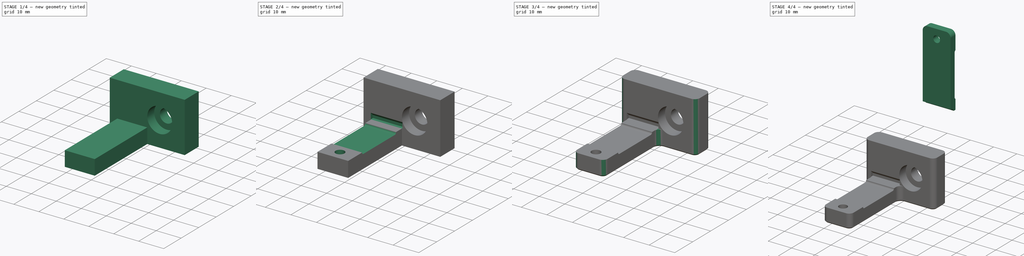
[diagram: build sequence overview — one tinted view per stage of 4, left to right]
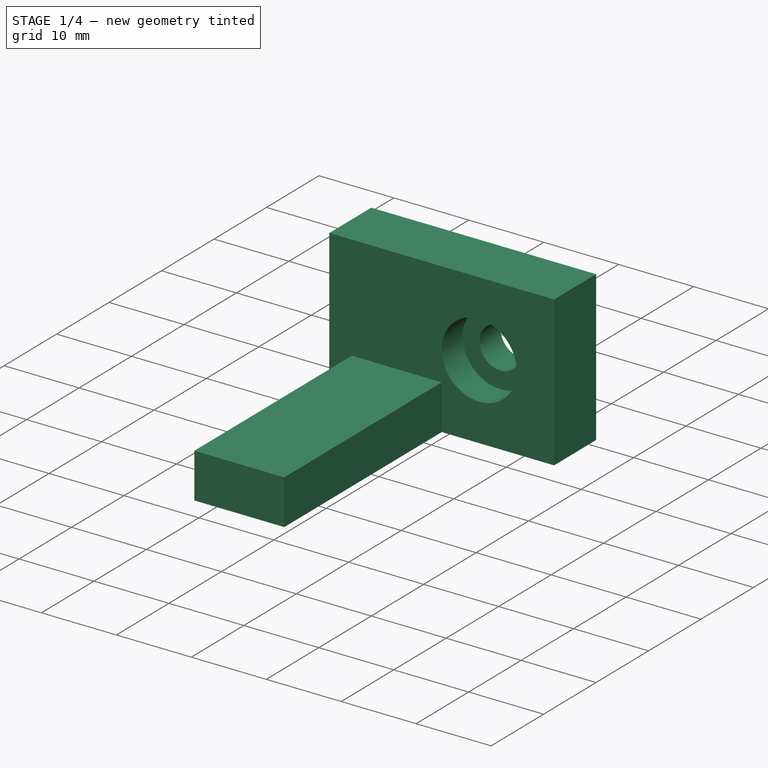
[diagram: stage 1 of 4 — iso view after this stage's code; geometry added in this stage tinted green]
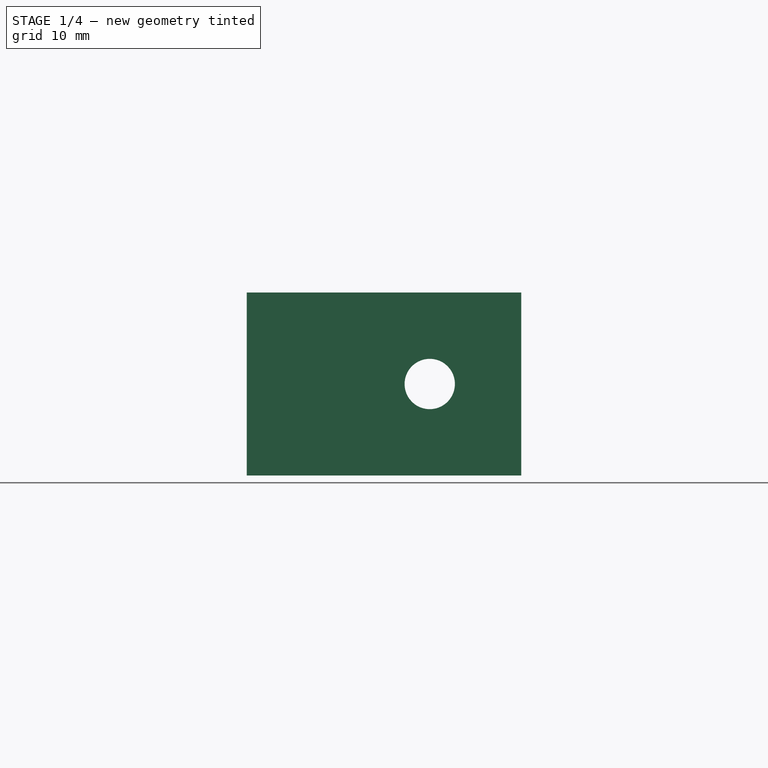
[diagram: stage 1 of 4 — front view after this stage's code; geometry added in this stage tinted green]
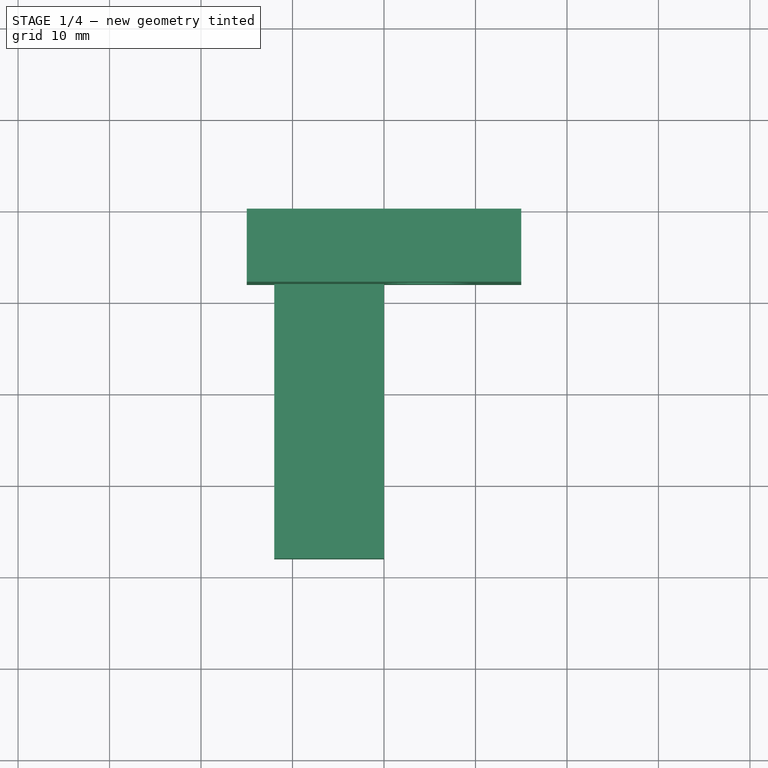
[diagram: stage 1 of 4 — top view after this stage's code; geometry added in this stage tinted green]
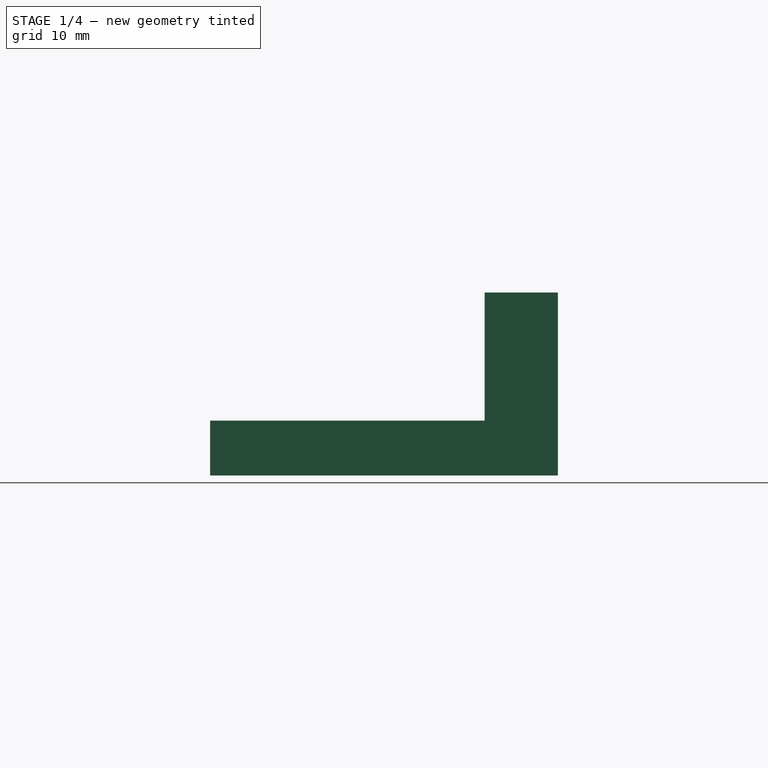
[diagram: stage 1 of 4 — right view after this stage's code; geometry added in this stage tinted green]
FCSTD DOCUMENT  (FreeCAD 1.0R38806 (Git))
Label: wire-mount-frame
License: All rights reserved
LicenseURL: http://en.wikipedia.org/wiki/All_rights_reserved
objects: Sketcher::SketchObject×8, PartDesign::Pad×4, PartDesign::Groove×2, PartDesign::Pocket×2, PartDesign::Fillet×2, PartDesign::Body×2, App::Part×1, PartDesign::Chamfer×1
note: 51 computed .brp shape members not serialized (recipe doc carries the construction recipe); baked Part::Feature solids carry a one-line shape summary decoded from their .brp

FEATURE [Sketcher::SketchObject] Sketch
  ArcFitTolerance = 1e-06
  AttachmentSupport = -> [XY_Plane001]
  FullyConstrained = true
  MakeInternals = false
  MapMode = 5
  sketch-geometry (4):
    g0: LineSegment StartX=-15 StartY=0 StartZ=0 EndX=-15 EndY=-8 EndZ=0
    g1: LineSegment StartX=15 StartY=-8 StartZ=0 EndX=15 EndY=0 EndZ=0
    g2: LineSegment StartX=15 StartY=0 StartZ=0 EndX=-15 EndY=0 EndZ=0
    g3: LineSegment StartX=15 StartY=-8 StartZ=0 EndX=-15 EndY=-8 EndZ=0
  constraints (11):
    c: Coincident(g1,g2)
    c: Coincident(g2,g0)
    c: Vertical(g0)
    c: Vertical(g1)
    c: Horizontal(g2)
    c: PointOnObject(g0,g-1)
    c: Coincident(g3,g0)
    c: Symmetric(g0,g1,g-2)
    c: DistanceX(g2,g2) = 30
    c: DistanceY(g1,g1) = 8
    c: Coincident(g3,g1)
FEATURE [PartDesign::Pad] Pad
  Direction = (0,0,1)
  Length = 20
  Length2 = 10
  Profile = -> Sketch
  ReferenceAxis = -> Sketch [N_Axis]
  Suppressed = false
  Type = 0
FEATURE [Sketcher::SketchObject] Sketch001
  ArcFitTolerance = 1e-06
  AttachmentSupport = -> [XY_Plane001]
  FullyConstrained = true
  MakeInternals = false
  MapMode = 5
  sketch-geometry (4):
    g0: LineSegment StartX=-12 StartY=-8 StartZ=0 EndX=-12 EndY=-38 EndZ=0
    g1: LineSegment StartX=-12 StartY=-38 StartZ=0 EndX=0 EndY=-38 EndZ=0
    g2: LineSegment StartX=0 StartY=-38 StartZ=0 EndX=0 EndY=-8 EndZ=0
    g3: LineSegment StartX=0 StartY=-8 StartZ=0 EndX=-12 EndY=-8 EndZ=0
  constraints (12):
    c: Coincident(g0,g1)
    c: Coincident(g1,g2)
    c: Coincident(g2,g3)
    c: Coincident(g3,g0)
    c: Vertical(g0)
    c: Vertical(g2)
    c: Horizontal(g1)
    c: Horizontal(g3)
    c: DistanceY(g2,g2) = 30
    c: DistanceY(g2) = -8
    c: DistanceX(g3,g3) = 12
    c: DistanceX(g0) = -12
FEATURE [PartDesign::Pad] Pad001
  BaseFeature = -> Pad
  Direction = (0,0,1)
  Length = 6
  Length2 = 10
  Profile = -> Sketch001
  ReferenceAxis = -> Sketch001 [N_Axis]
  Refine = true
  Suppressed = false
  Type = 0
FEATURE [Sketcher::SketchObject] Sketch002
  ArcFitTolerance = 1e-06
  AttachmentOffset = pos=(5,0,10) rot=(0,0,1;0rad)
  AttachmentSupport = -> [XY_Plane001]
  FullyConstrained = true
  MakeInternals = false
  MapMode = 5
  Placement = pos=(5,0,10) rot=(0,0,1;0rad)
  sketch-geometry (6):
    g0: LineSegment StartX=0 StartY=0 StartZ=0 EndX=2.75 EndY=0 EndZ=0
    g1: LineSegment StartX=2.75 StartY=0 StartZ=0 EndX=2.75 EndY=-4 EndZ=0
    g2: LineSegment StartX=2.75 StartY=-4 StartZ=0 EndX=5 EndY=-4 EndZ=0
    g3: LineSegment StartX=5 StartY=-4 StartZ=0 EndX=5 EndY=-8 EndZ=0
    g4: LineSegment StartX=5 StartY=-8 StartZ=0 EndX=0 EndY=-8 EndZ=0
    g5: LineSegment StartX=0 StartY=-8 StartZ=0 EndX=0 EndY=0 EndZ=0
  constraints (17):
    c: Coincident(g-1,g0)
    c: PointOnObject(g0,g-1)
    c: Coincident(g0,g1)
    c: Vertical(g1)
    c: Coincident(g1,g2)
    c: Horizontal(g2)
    c: Coincident(g2,g3)
    c: Vertical(g3)
    c: Coincident(g3,g4)
    c: PointOnObject(g4,g-2)
    c: Horizontal(g4)
    c: Coincident(g4,g5)
    c: Coincident(g5,g0)
    c: DistanceX(g0,g0) = 2.75
    c: DistanceX(g4,g4) = 5
    c: DistanceY(g1,g1) = 4
    c: DistanceY(g3,g3) = 4
FEATURE [PartDesign::Groove] Groove
  Angle = 360
  Angle2 = 60
  Axis = (0,1,0)
  Base = (5,0,10)
  BaseFeature = -> Pad001
  Profile = -> Sketch002
  ReferenceAxis = -> Sketch002 [V_Axis]
  Suppressed = false
  Type = 0
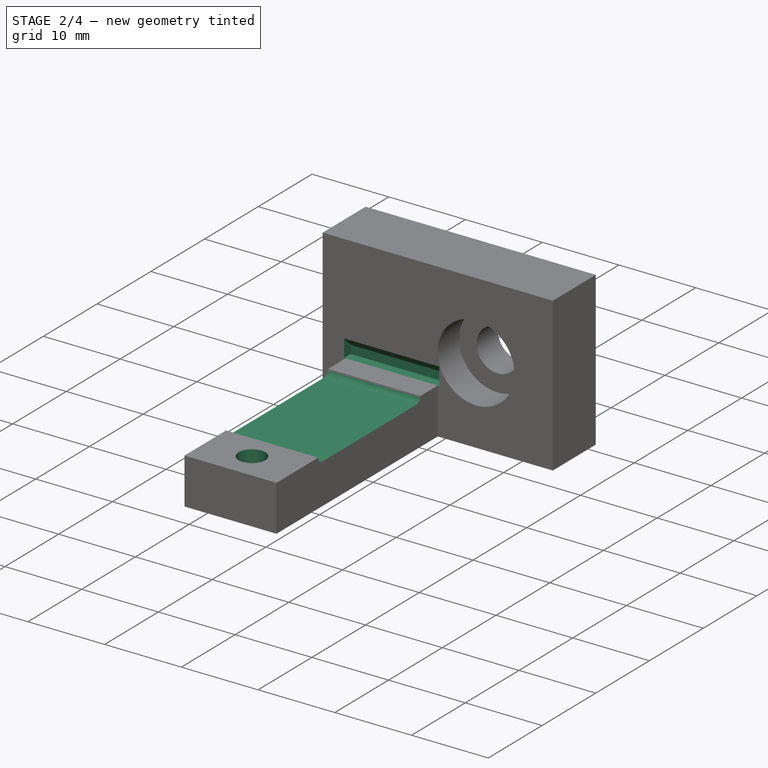
[diagram: stage 2 of 4 — iso view after this stage's code; geometry added in this stage tinted green]
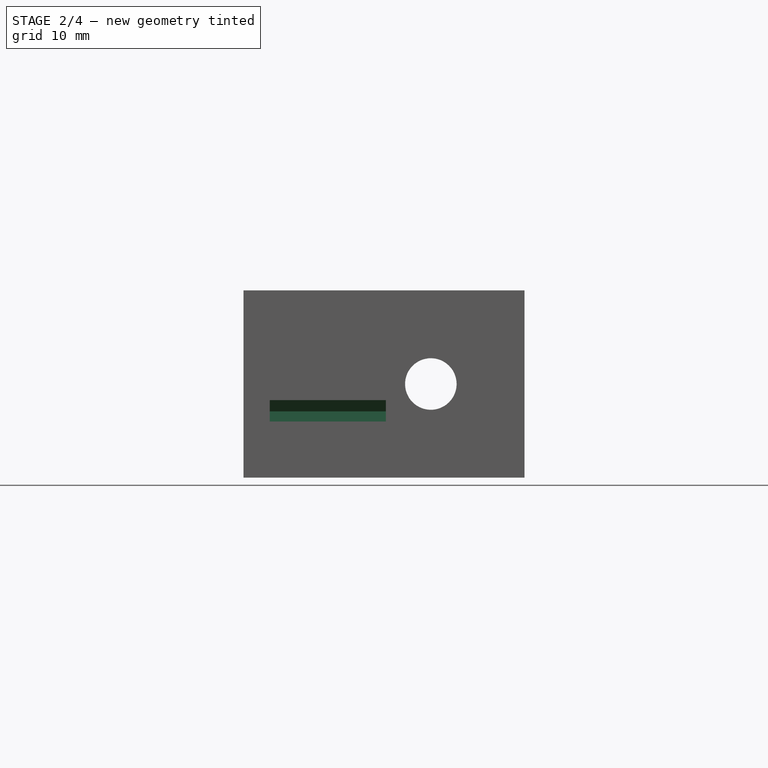
[diagram: stage 2 of 4 — front view after this stage's code; geometry added in this stage tinted green]
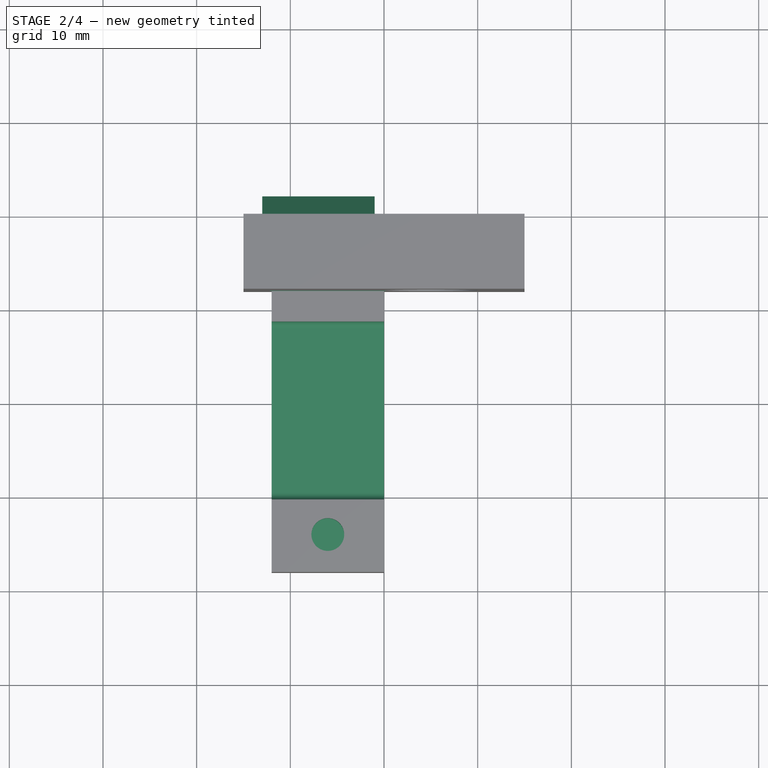
[diagram: stage 2 of 4 — top view after this stage's code; geometry added in this stage tinted green]
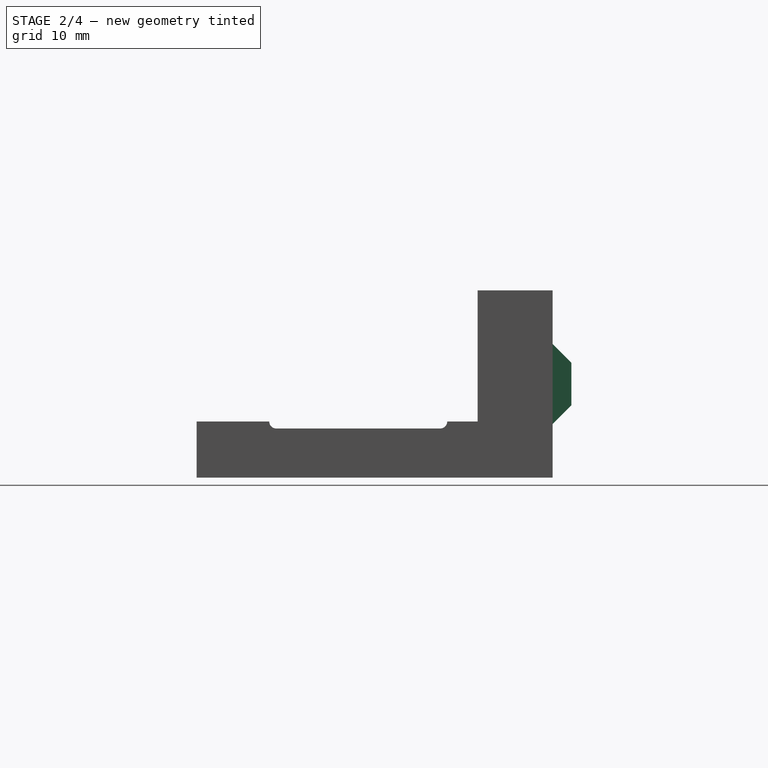
[diagram: stage 2 of 4 — right view after this stage's code; geometry added in this stage tinted green]
FEATURE [Sketcher::SketchObject] Sketch003
  ArcFitTolerance = 1e-06
  AttachmentSupport = -> [YZ_Plane001]
  FullyConstrained = true
  MakeInternals = false
  MapMode = 5
  Placement = pos=(0,0,0) rot=(0.57735,0.57735,0.57735;2.0944rad)
  sketch-geometry (7):
    g0: GeomPoint X=0 Y=10 Z=0
    g1: LineSegment StartX=0 StartY=14.2757 StartZ=0 EndX=0 EndY=5.72426 EndZ=0
    g2: LineSegment StartX=0 StartY=5.72426 StartZ=0 EndX=2 EndY=7.72426 EndZ=0
    g3: LineSegment StartX=2 StartY=7.72426 StartZ=0 EndX=2 EndY=12.2757 EndZ=0
    g4: LineSegment StartX=2 StartY=12.2757 StartZ=0 EndX=0 EndY=14.2757 EndZ=0
    g5: GeomPoint X=2 Y=10 Z=0
    g6: LineSegment [constr] StartX=2 StartY=12.7 StartZ=0 EndX=2 EndY=7.3 EndZ=0
  constraints (17):
    c: PointOnObject(g0,g-2)
    c: DistanceY(g0) = 10
    c: PointOnObject(g1,g-2)
    c: Coincident(g1,g2)
    c: Coincident(g2,g3)
    c: Vertical(g3)
    c: Coincident(g3,g4)
    c: Coincident(g4,g1)
    c: Symmetric(g1,g1,g0)
    c: Symmetric(g3,g3,g5)
    c: Horizontal(g5,g0)
    c: Perpendicular(g2,g4)
    c: DistanceX(g4,g4) = 2
    c: Vertical(g6)
    c: Symmetric(g6,g6,g5)
    c: DistanceY(g6,g6) = 5.4
    c: Distance(g6,g4) = 0.3
FEATURE [PartDesign::Pad] Pad002
  BaseFeature = -> Groove
  Direction = (1,0,0)
  Length = 13
  Length2 = -1
  Profile = -> Sketch003
  ReferenceAxis = -> Sketch003 [N_Axis]
  Reversed = true
  Suppressed = false
  Type = 4
FEATURE [Sketcher::SketchObject] Sketch004
  ArcFitTolerance = 1e-06
  AttachmentOffset = pos=(0,0,-6) rot=(0,0,1;0rad)
  AttachmentSupport = -> [YZ_Plane001]
  FullyConstrained = true
  MakeInternals = false
  MapMode = 5
  Placement = pos=(-6,0,0) rot=(0.57735,0.57735,0.57735;2.0944rad)
  sketch-geometry (9):
    g0: LineSegment StartX=-8 StartY=6 StartZ=0 EndX=-6.8 EndY=6 EndZ=0
    g1: LineSegment StartX=-6.8 StartY=6 StartZ=0 EndX=-6.8 EndY=7.08284 EndZ=0
    g2: LineSegment StartX=-6.8 StartY=7.08284 StartZ=0 EndX=-8 EndY=8.28284 EndZ=0
    g3: LineSegment StartX=-8 StartY=8.28284 StartZ=0 EndX=-8 EndY=6 EndZ=0
    g4: ArcOfCircle CenterX=-29.5 CenterY=6 CenterZ=0 NormalX=0 NormalY=0 NormalZ=1 AngleXU=0 Radius=0.75 StartAngle=1.5708 EndAngle=4.71239
    g5: ArcOfCircle CenterX=-12 CenterY=6 CenterZ=0 NormalX=0 NormalY=0 NormalZ=1 AngleXU=0 Radius=0.75 StartAngle=4.71239 EndAngle=7.85398
    g6: LineSegment StartX=-29.5 StartY=6.75 StartZ=0 EndX=-12 EndY=6.75 EndZ=0
    g7: LineSegment StartX=-29.5 StartY=5.25 StartZ=0 EndX=-12 EndY=5.25 EndZ=0
    g8: LineSegment [constr] StartX=-7 StartY=7 StartZ=0 EndX=-8 EndY=8 EndZ=0
  constraints (26):
    c: Coincident(g0,g1)
    c: Vertical(g1)
    c: Coincident(g1,g2)
    c: Coincident(g2,g3)
    c: Coincident(g3,g0)
    c: Vertical(g3)
    c: Horizontal(g0)
    c: Angle(g2) = 2.35619
    c: DistanceX(g0,g0) = 1.2
    c: DistanceX(g0) = -8
    c: DistanceY(g0) = 6
    c: Tangent(g4,g6) = 1.5708
    c: Tangent(g4,g7) = -1.5708
    c: Tangent(g5,g6) = 1.5708
    c: Tangent(g5,g7) = -1.5708
    c: Equal(g4,g5)
    c: Horizontal(g6)
    c: DistanceY(g4) = 6
    c: DistanceX(g4,g5) = 17.5
    c: Radius(g4) = 0.75
    c: DistanceX(g5) = -12
    c: PointOnObject(g8,g3)
    c: Parallel(g8,g2)
    c: DistanceY(g0,g8) = 1
    c: DistanceX(g0,g8) = 1
    c: Distance(g8,g2) = 0.2
FEATURE [PartDesign::Pocket] Pocket
  BaseFeature = -> Pad002
  Direction = (-1,0,0)
  Length = 12.4
  Length2 = 5
  Midplane = true
  Profile = -> Sketch004
  ReferenceAxis = -> Sketch004 [N_Axis]
  Suppressed = false
  Type = 0
FEATURE [Sketcher::SketchObject] Sketch005
  ArcFitTolerance = 1e-06
  AttachmentOffset = pos=(-34,0,-6) rot=(0,0,1;0rad)
  AttachmentSupport = -> [YZ_Plane001]
  FullyConstrained = true
  MakeInternals = false
  MapMode = 5
  Placement = pos=(-6,-34,0) rot=(0.57735,0.57735,0.57735;2.0944rad)
  sketch-geometry (8):
    g0: LineSegment StartX=0 StartY=4 StartZ=0 EndX=0 EndY=0 EndZ=0
    g1: LineSegment StartX=0 StartY=0 StartZ=0 EndX=3 EndY=0 EndZ=0
    g2: LineSegment StartX=3 StartY=0 StartZ=0 EndX=3 EndY=4 EndZ=0
    g3: LineSegment StartX=3 StartY=4 StartZ=0 EndX=0 EndY=4 EndZ=0
    g4: LineSegment StartX=0 StartY=6 StartZ=0 EndX=0 EndY=4.3 EndZ=0
    g5: LineSegment StartX=0 StartY=4.3 StartZ=0 EndX=1.75 EndY=4.3 EndZ=0
    g6: LineSegment StartX=1.75 StartY=4.3 StartZ=0 EndX=1.75 EndY=6 EndZ=0
    g7: LineSegment StartX=1.75 StartY=6 StartZ=0 EndX=0 EndY=6 EndZ=0
  constraints (24):
    c: Coincident(g0,g1)
    c: Coincident(g1,g2)
    c: Coincident(g2,g3)
    c: Coincident(g3,g0)
    c: Vertical(g0)
    c: Vertical(g2)
    c: Horizontal(g1)
    c: Horizontal(g3)
    c: PointOnObject(g0,g-2)
    c: PointOnObject(g1,g-1)
    c: Coincident(g4,g5)
    c: Coincident(g5,g6)
    c: Coincident(g6,g7)
    c: Coincident(g7,g4)
    c: Vertical(g4)
    c: Vertical(g6)
    c: Horizontal(g5)
    c: Horizontal(g7)
    c: PointOnObject(g4,g-2)
    c: DistanceY(g2,g5) = 0.3
    c: DistanceX(g1,g1) = 3
    c: DistanceX(g5,g5) = 1.75
    c: DistanceY(g6) = 6
    c: DistanceY(g2,g2) = 4
FEATURE [PartDesign::Groove] Groove001
  Angle = 360
  Angle2 = 60
  Axis = (0,0,1)
  Base = (-6,-34,0)
  BaseFeature = -> Pocket
  Profile = -> Sketch005
  ReferenceAxis = -> Sketch005 [V_Axis]
  Suppressed = false
  Type = 0
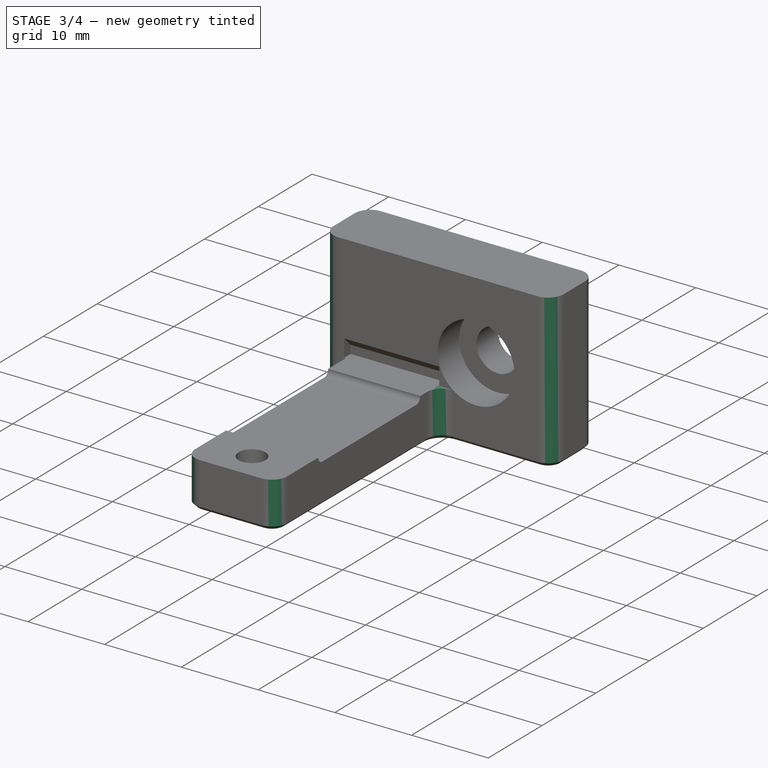
[diagram: stage 3 of 4 — iso view after this stage's code; geometry added in this stage tinted green]
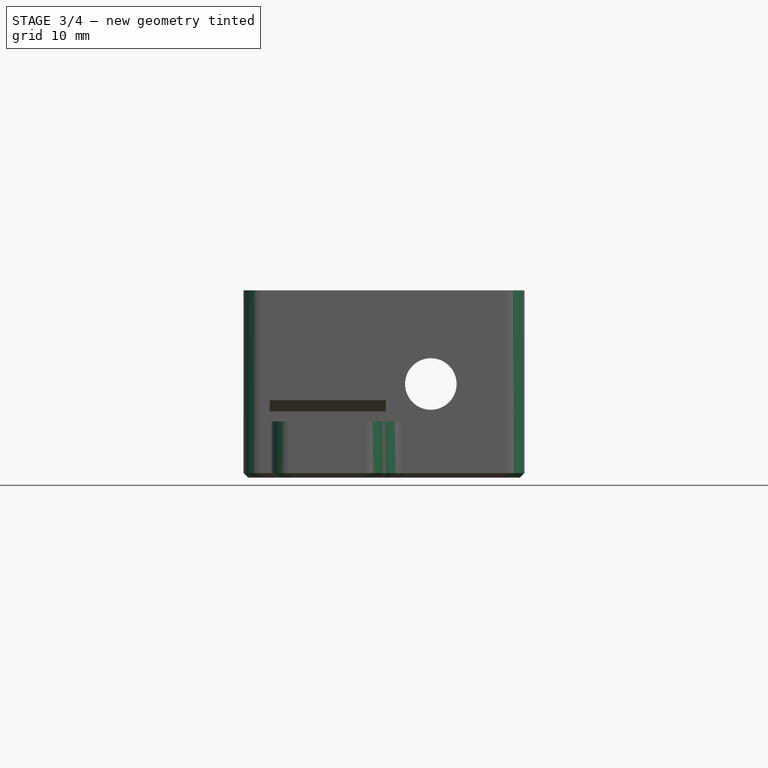
[diagram: stage 3 of 4 — front view after this stage's code; geometry added in this stage tinted green]
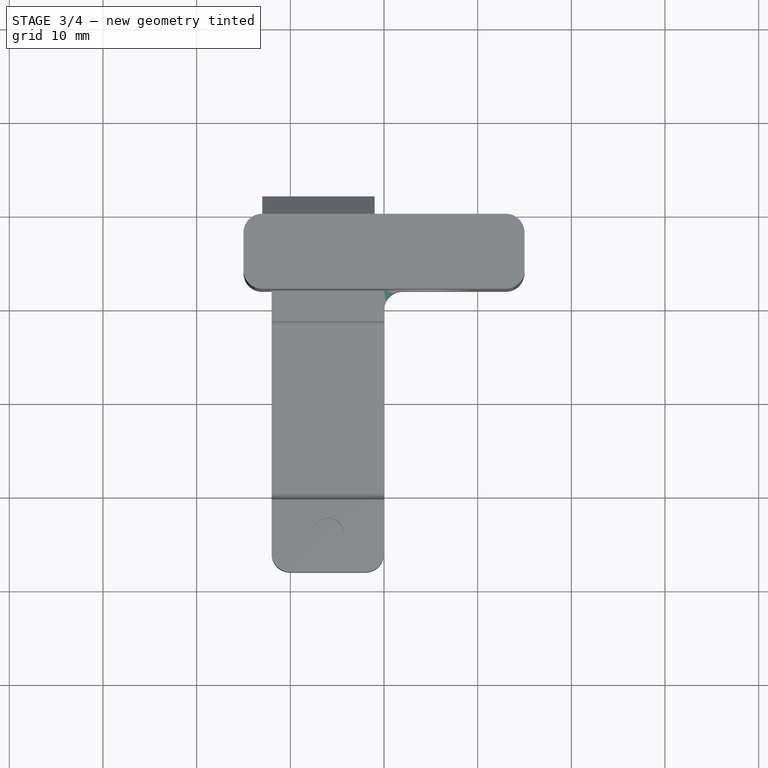
[diagram: stage 3 of 4 — top view after this stage's code; geometry added in this stage tinted green]
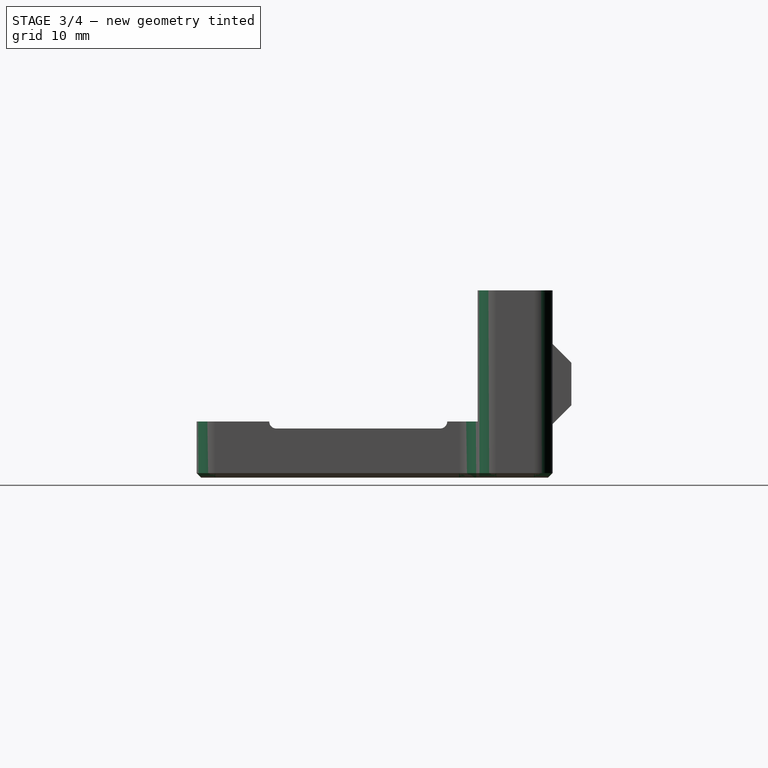
[diagram: stage 3 of 4 — right view after this stage's code; geometry added in this stage tinted green]
FEATURE [PartDesign::Body] Body160  label="wire-mount-clamp"
  AllowCompound = false
  Group = -> [Sketch351,Pad086,Fillet016,Sketch380,Pocket260]
  Origin = -> Origin305
  Placement = pos=(0,0,0) rot=(0,0,1;3.14159rad)
  Tip = -> Pocket260
FEATURE [App::Part] Part
  Group = -> [Body160]
  Origin = -> Origin306
  Placement = pos=(-6,20,24) rot=(1,0,0;1.5708rad)
FEATURE [PartDesign::Fillet] Fillet
  Base = -> Groove001 [Edge19,Edge14,Edge46,Edge36,Edge6,Edge1,Edge2]
  BaseFeature = -> Groove001
  Radius = 1.99
  SupportTransform = false
  Suppressed = false
  UseAllEdges = false
FEATURE [PartDesign::Chamfer] Chamfer
  Angle = 45
  Base = -> Fillet [Face2]
  BaseFeature = -> Fillet
  ChamferType = 0
  FlipDirection = false
  Size = 0.49
  Size2 = 1
  SupportTransform = false
  Suppressed = false
  UseAllEdges = false
FEATURE [PartDesign::Body] Body001  label="wire-mount"
  AllowCompound = false
  Group = -> [Sketch,Pad,Sketch001,Pad001,Sketch002,Groove,Sketch003,Pad002,Sketch004,Pocket,Sketch005,Groove001,Fillet,Chamfer]
  Origin = -> Origin001
  Tip = -> Chamfer
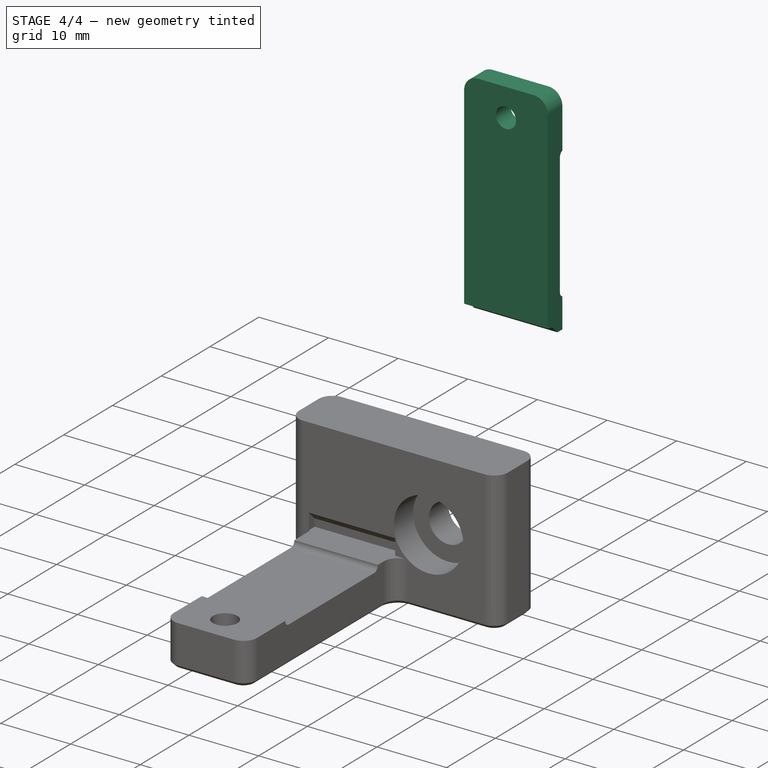
[diagram: stage 4 of 4 — iso view after this stage's code; geometry added in this stage tinted green]
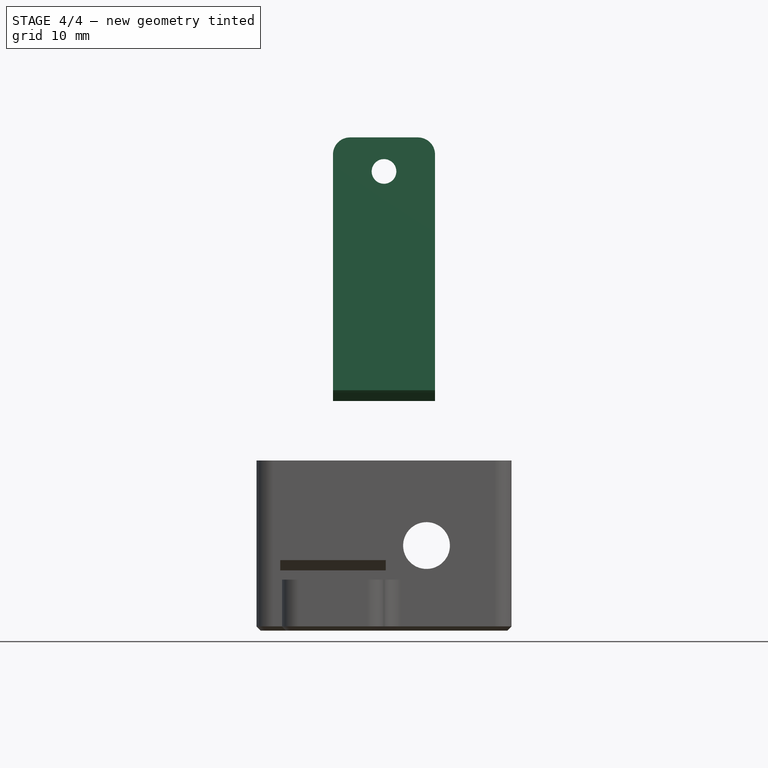
[diagram: stage 4 of 4 — front view after this stage's code; geometry added in this stage tinted green]
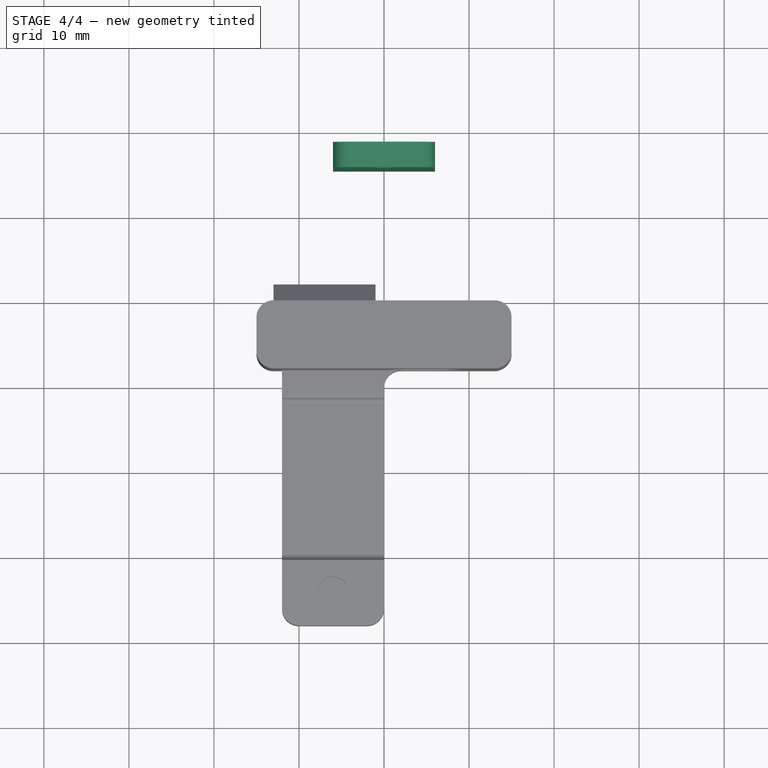
[diagram: stage 4 of 4 — top view after this stage's code; geometry added in this stage tinted green]
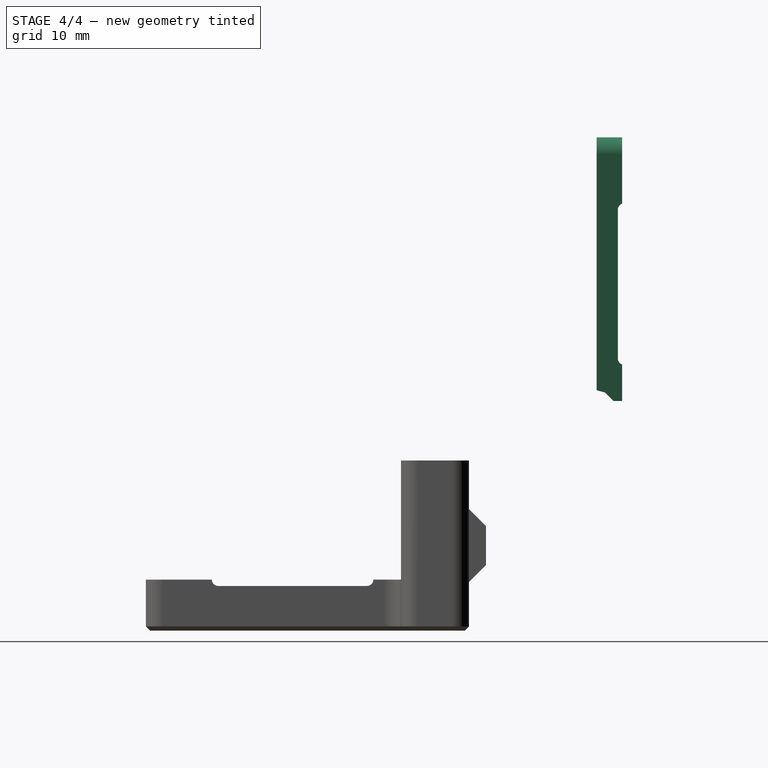
[diagram: stage 4 of 4 — right view after this stage's code; geometry added in this stage tinted green]
FEATURE [Sketcher::SketchObject] Sketch351
  ArcFitTolerance = 0
  AttachmentSupport = -> [YZ_Plane304]
  FullyConstrained = true
  MakeInternals = false
  MapMode = 5
  Placement = pos=(0,0,0) rot=(0.57735,0.57735,0.57735;2.0944rad)
  sketch-geometry (12):
    g0: GeomPoint [constr] X=18 Y=28 Z=0
    g1: LineSegment StartX=15 StartY=58 StartZ=0 EndX=18 EndY=58 EndZ=0
    g2: LineSegment StartX=18 StartY=58 StartZ=0 EndX=18 EndY=50.2071 EndZ=0
    g3: LineSegment StartX=18 StartY=28 StartZ=0 EndX=18 EndY=27 EndZ=0
    g4: LineSegment StartX=18 StartY=27 StartZ=0 EndX=17 EndY=27 EndZ=0
    g5: ArcOfCircle CenterX=18.25 CenterY=49.5 CenterZ=0 NormalX=0 NormalY=0 NormalZ=1 AngleXU=0 Radius=0.75 StartAngle=1.91063 EndAngle=3.14159
    g6: ArcOfCircle CenterX=18.25 CenterY=32 CenterZ=0 NormalX=0 NormalY=0 NormalZ=1 AngleXU=0 Radius=0.75 StartAngle=3.14159 EndAngle=4.37255
    g7: LineSegment StartX=17.5 StartY=49.5 StartZ=0 EndX=17.5 EndY=32 EndZ=0
    g8: LineSegment StartX=18 StartY=31.2929 StartZ=0 EndX=18 EndY=28 EndZ=0
    g9: LineSegment StartX=17 StartY=27 StartZ=0 EndX=16 EndY=28 EndZ=0
    g10: LineSegment StartX=15 StartY=58 StartZ=0 EndX=15 EndY=28.2679 EndZ=0
    g11: LineSegment StartX=15 StartY=28.2679 StartZ=0 EndX=16 EndY=28 EndZ=0
  constraints (34):
    c: DistanceX(g0) = 18
    c: Coincident(g1,g2)
    c: Horizontal(g1)
    c: Vertical(g2)
    c: DistanceX(g1,g1) = 3
    c: DistanceY(g8,g2) = 30
    c: Coincident(g8,g3)
    c: Vertical(g3)
    c: Coincident(g3,g4)
    c: Horizontal(g4)
    c: DistanceY(g8) = 28
    c: DistanceX(g4,g4) = 1
    c: DistanceY(g3,g3) = 1
    c: Tangent(g5,g7) = -1.5708
    c: Tangent(g7,g6) = -1.5708
    c: Equal(g5,g6)
    c: Vertical(g7)
    c: DistanceY(g8,g6) = 4
    c: Coincident(g6,g8)
    c: Coincident(g5,g2)
    c: Radius(g5) = 0.75
    c: Vertical(g8)
    c: DistanceX(g6,g6) = 0.25
    c: DistanceY(g7,g7) = 17.5
    c: PointOnObject(g2,g8)
    c: Coincident(g9,g4)
    c: Horizontal(g9,g3)
    c: Angle(g9) = 2.35619
    c: Coincident(g3,g0)
    c: Coincident(g10,g1)
    c: Vertical(g10)
    c: Coincident(g11,g10)
    c: Coincident(g11,g9)
    c: Angle(g11) = -0.261799
FEATURE [PartDesign::Pad] Pad086
  Direction = (1,0,0)
  Length = 12
  Length2 = 10
  Midplane = true
  Placement = pos=(0,0,0) rot=(1,1,1;2.0944rad)
  Profile = -> Sketch351
  ReferenceAxis = -> Sketch351 [N_Axis]
  Suppressed = false
  Type = 0
FEATURE [PartDesign::Fillet] Fillet016
  Base = -> Pad086 [Edge4,Edge3]
  BaseFeature = -> Pad086
  Placement = pos=(0,0,0) rot=(1,1,1;2.0944rad)
  Radius = 2
  SupportTransform = false
  Suppressed = false
  UseAllEdges = false
FEATURE [Sketcher::SketchObject] Sketch380
  ArcFitTolerance = 0
  AttachmentSupport = -> [XZ_Plane304]
  FullyConstrained = true
  MakeInternals = false
  MapMode = 5
  Placement = pos=(0,0,0) rot=(1,0,0;1.5708rad)
  sketch-geometry (1):
    g0: Circle CenterX=0 CenterY=54 CenterZ=0 NormalX=0 NormalY=0 NormalZ=1 AngleXU=0 Radius=1.45
  constraints (3):
    c: PointOnObject(g0,g-2)
    c: DistanceY(g0) = 54
    c: Diameter(g0) = 2.9
FEATURE [PartDesign::Pocket] Pocket260
  BaseFeature = -> Fillet016
  Direction = (0,1,-2e-16)
  Length = 5
  Length2 = 5
  Midplane = true
  Placement = pos=(0,0,0) rot=(1,1,1;2.0944rad)
  Profile = -> Sketch380
  ReferenceAxis = -> Sketch380 [N_Axis]
  Suppressed = false
  Type = 1
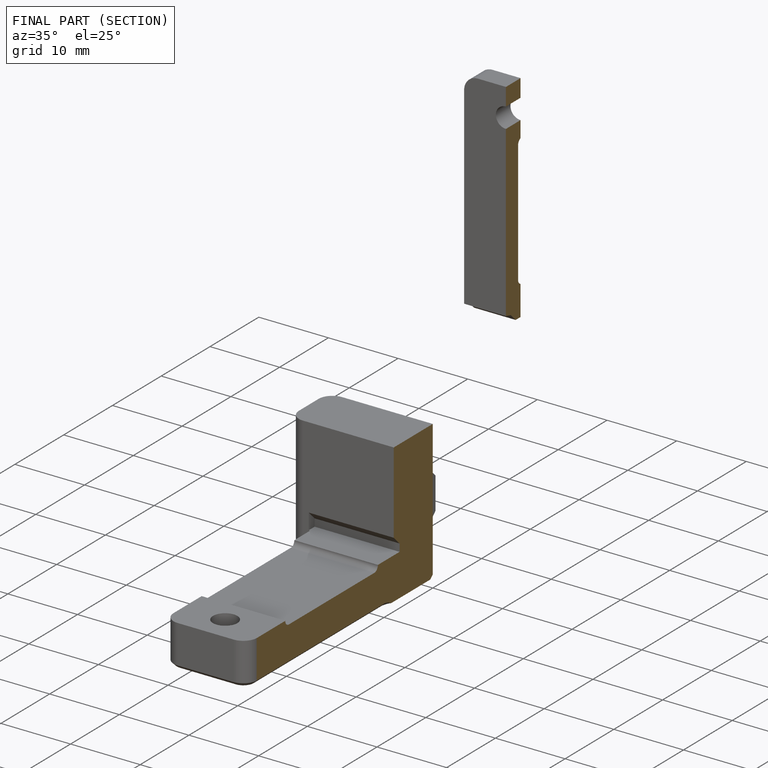
[diagram: finished part — half-section view (interior)]
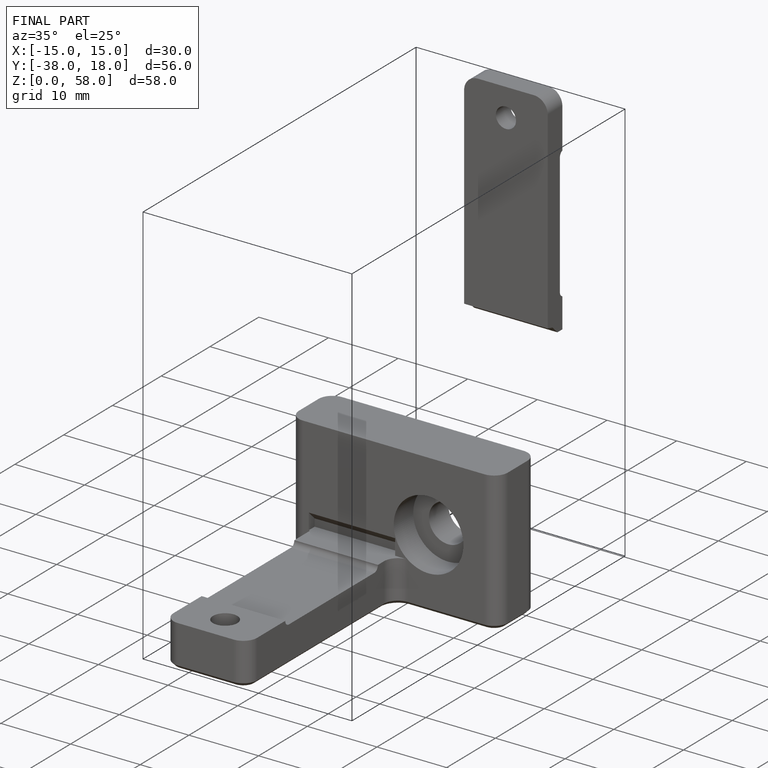
[diagram: finished part — iso view with bounding-box wireframe]
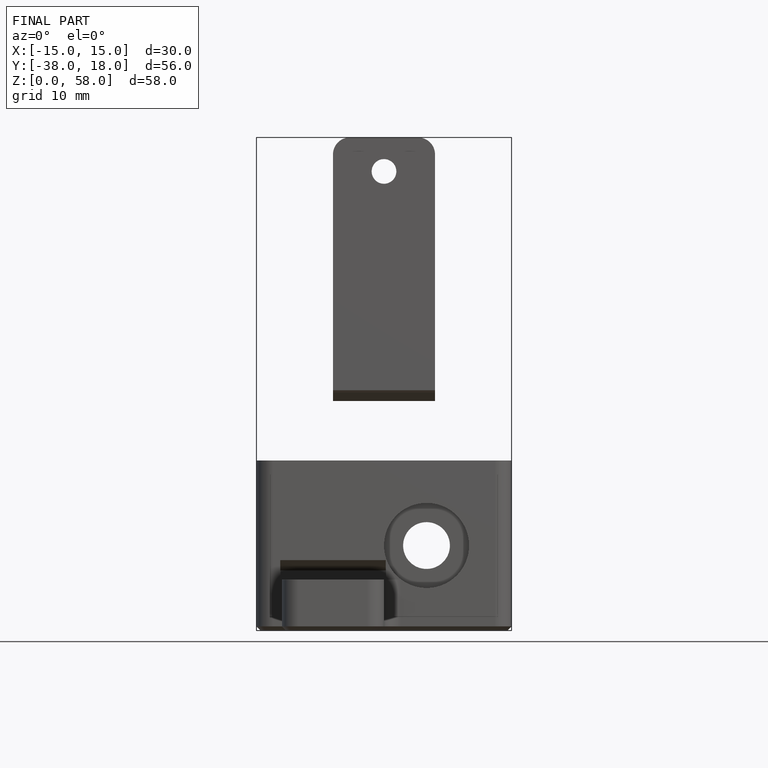
[diagram: finished part — front view with bounding-box wireframe]
